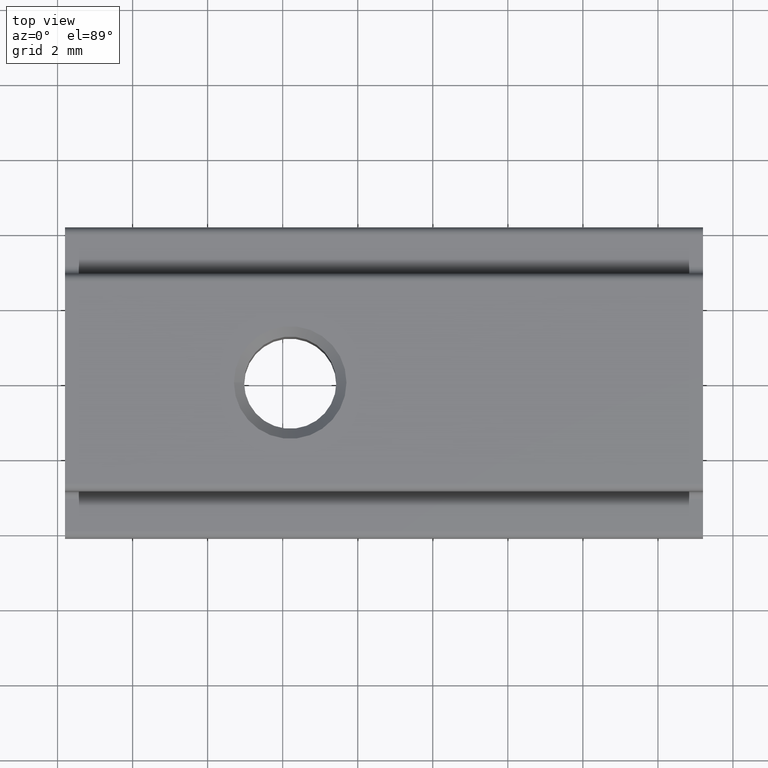
[diagram: clean part render]
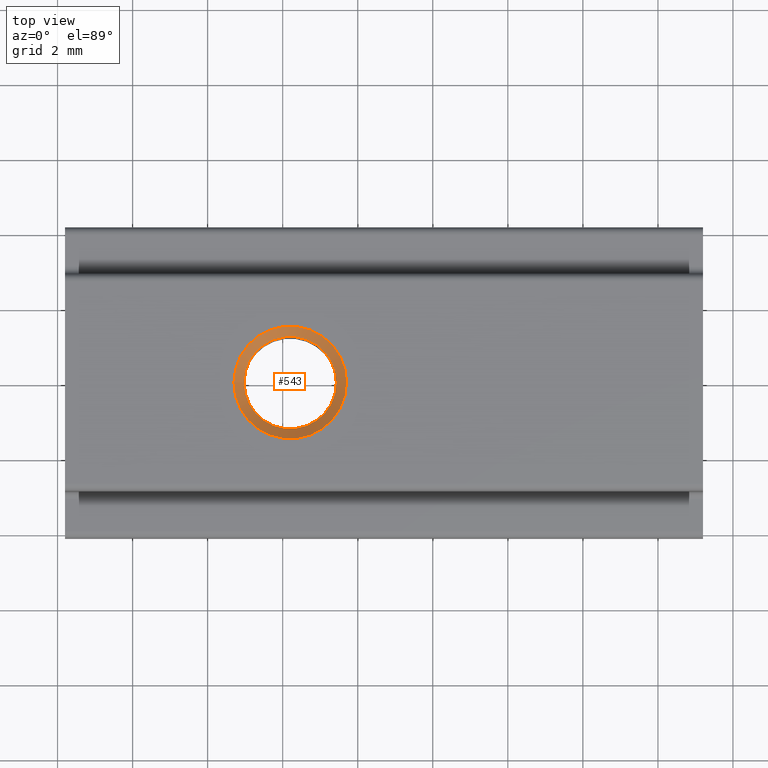
[diagram: same view with one face highlighted and labeled with its STEP entity id]
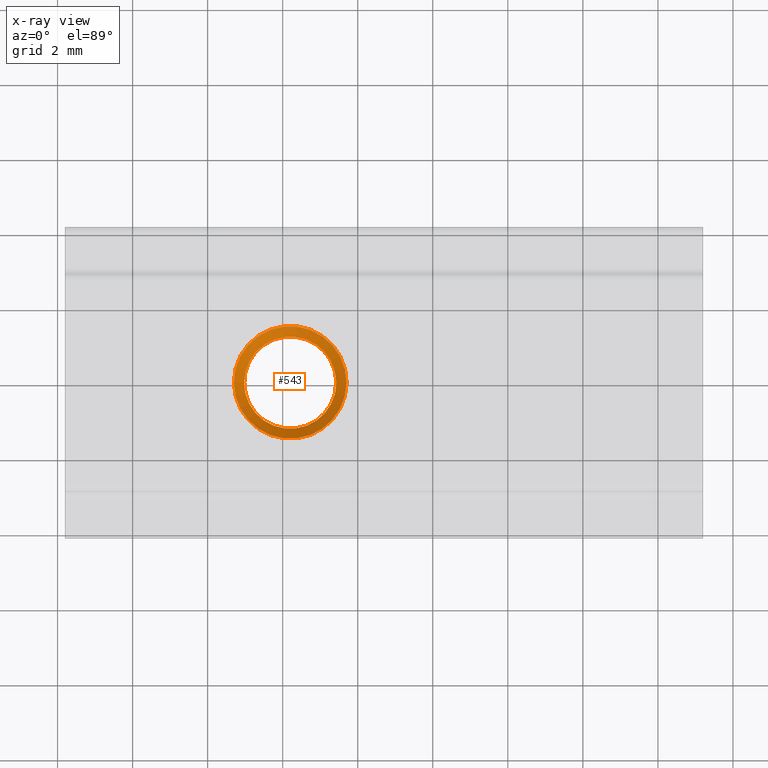
[diagram: x-ray of the same camera — body ghosted, the highlighted face saturated]
A machine part, top view. The second image highlights one B-rep face of the part: STEP entity #543.
The next image is the same camera in x-ray: the body ghosted, the highlighted face saturated — about 0% of this face is hidden behind the body in this view.
In plain terms, the highlighted conical surface has half-angle 45 deg.
Its self-contained STEP definition (entity closure, byte-faithful):
#17=CONICAL_SURFACE('',#613,1.2295,0.785398163397449);
#59=FACE_OUTER_BOUND('',#89,.T.);
#89=EDGE_LOOP('',(#488,#489,#490,#491));
#136=LINE('',#947,#182);
#182=VECTOR('',#773,1.2295);
#200=CIRCLE('',#589,1.5);
#211=CIRCLE('',#612,1.2295);
#247=VERTEX_POINT('',#887);
#264=VERTEX_POINT('',#943);
#313=EDGE_CURVE('',#247,#247,#200,.T.);
#341=EDGE_CURVE('',#264,#264,#211,.T.);
#342=EDGE_CURVE('',#264,#247,#136,.T.);
#488=ORIENTED_EDGE('',*,*,#341,.F.);
#489=ORIENTED_EDGE('',*,*,#342,.T.);
#490=ORIENTED_EDGE('',*,*,#313,.T.);
#491=ORIENTED_EDGE('',*,*,#342,.F.);
#543=ADVANCED_FACE('',(#59),#17,.F.);
#589=AXIS2_PLACEMENT_3D('',#888,#706,#707);
#612=AXIS2_PLACEMENT_3D('',#945,#769,#770);
#613=AXIS2_PLACEMENT_3D('',#946,#771,#772);
#706=DIRECTION('center_axis',(-2.22044604925031E-16,0.,1.));
#707=DIRECTION('ref_axis',(1.,0.,2.22044604925031E-16));
#769=DIRECTION('center_axis',(-2.22044604925031E-16,0.,1.));
#770=DIRECTION('ref_axis',(1.,0.,2.22044604925031E-16));
#771=DIRECTION('center_axis',(-2.22044604925031E-16,0.,1.));
#772=DIRECTION('ref_axis',(1.,0.,2.22044604925031E-16));
#773=DIRECTION('',(-0.707106781186548,-8.65956056235494E-17,0.707106781186547));
#887=CARTESIAN_POINT('',(-13.3,-1.83697019872103E-16,-3.80000000000001));
#888=CARTESIAN_POINT('Origin',(-11.8,0.,-3.80000000000001));
#943=CARTESIAN_POINT('',(-13.0295,-1.50570323955167E-16,-4.07050000000001));
#945=CARTESIAN_POINT('Origin',(-11.8,0.,-4.07050000000001));
#946=CARTESIAN_POINT('Origin',(-11.8,0.,-4.07050000000001));
#947=CARTESIAN_POINT('',(-13.0295,-1.50570323955167E-16,-4.07050000000001));